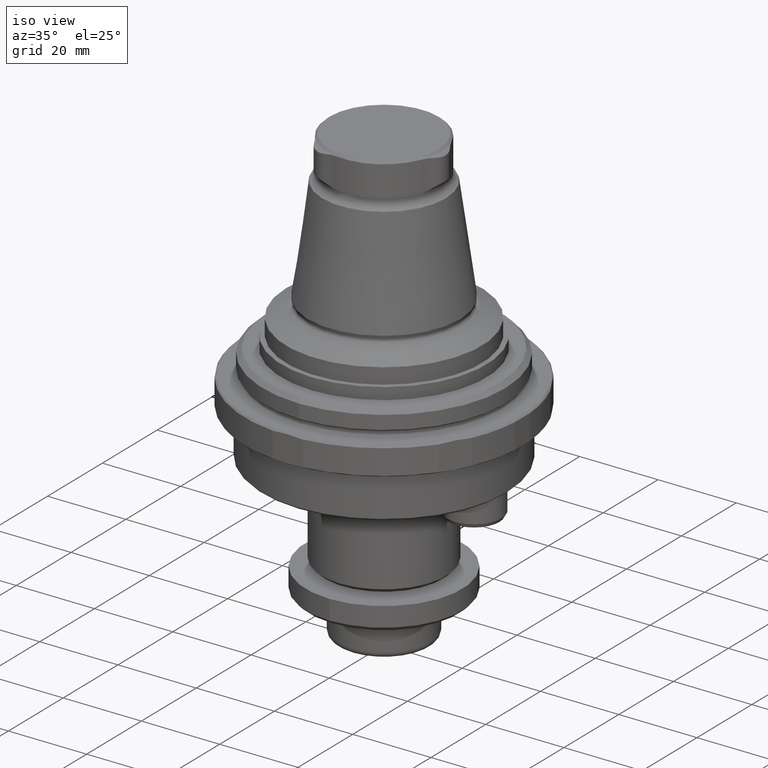
[diagram: clean part render]
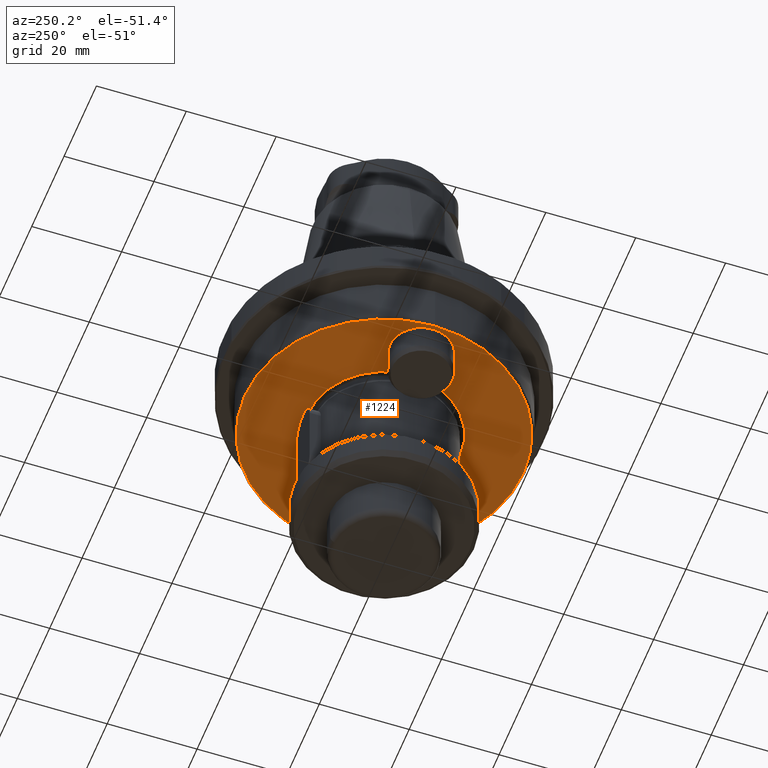
[diagram: tour spotlight — one face highlighted and labeled with its STEP entity id]
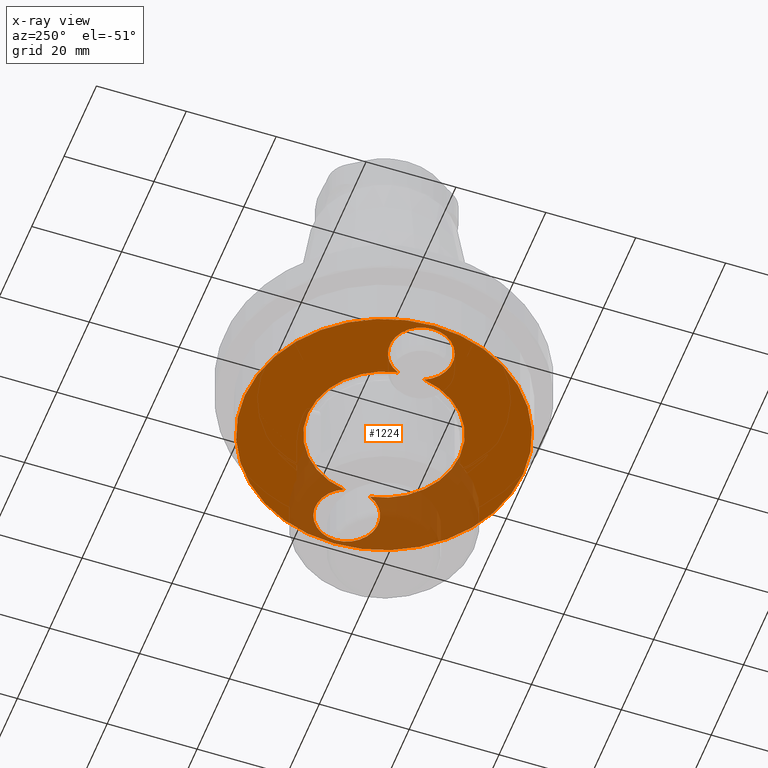
[diagram: x-ray of the same camera — body ghosted, this tour face saturated]
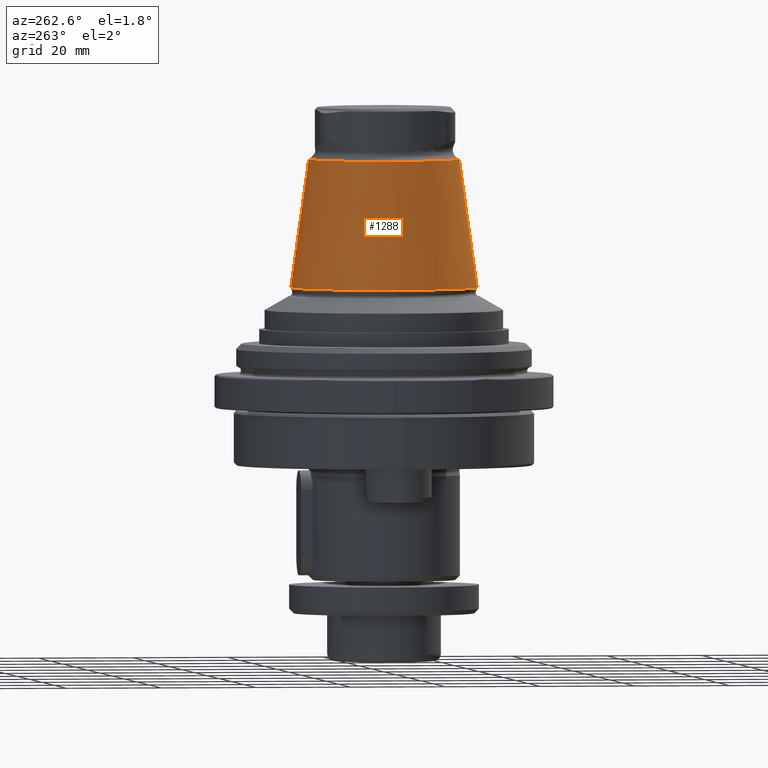
[diagram: tour spotlight — one face highlighted and labeled with its STEP entity id]
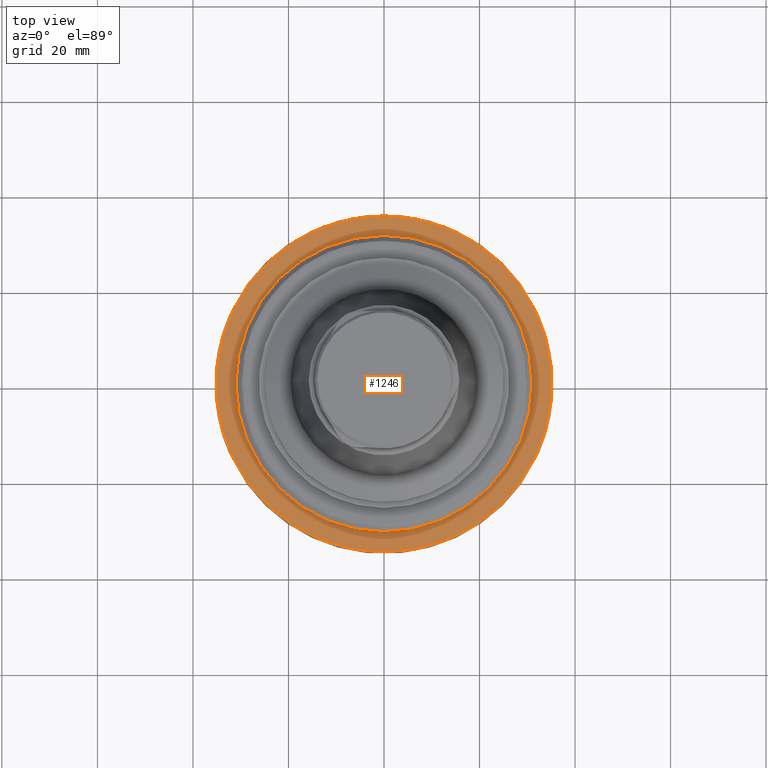
[diagram: tour spotlight — one face highlighted and labeled with its STEP entity id]
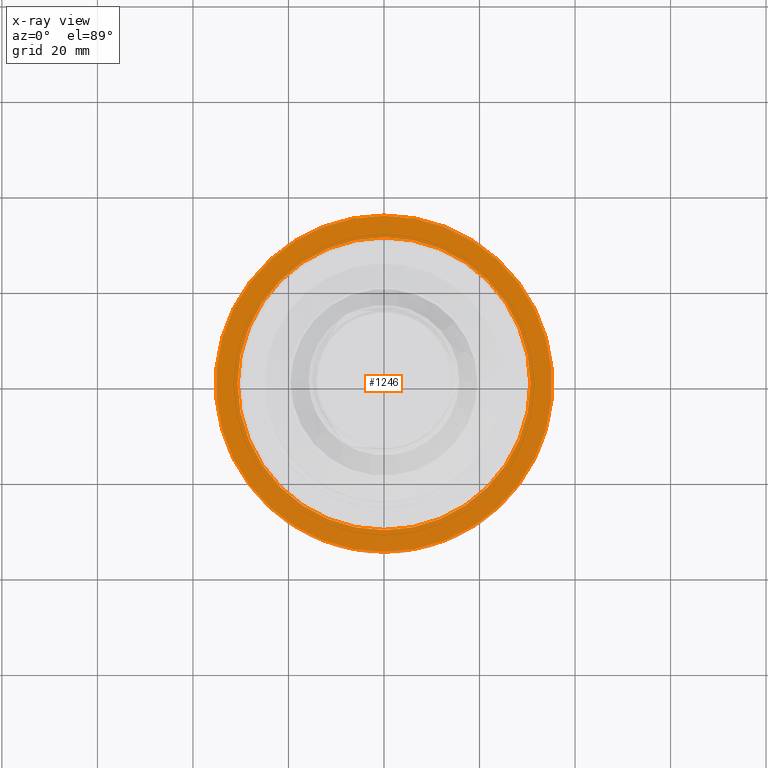
[diagram: x-ray of the same camera — body ghosted, this tour face saturated]
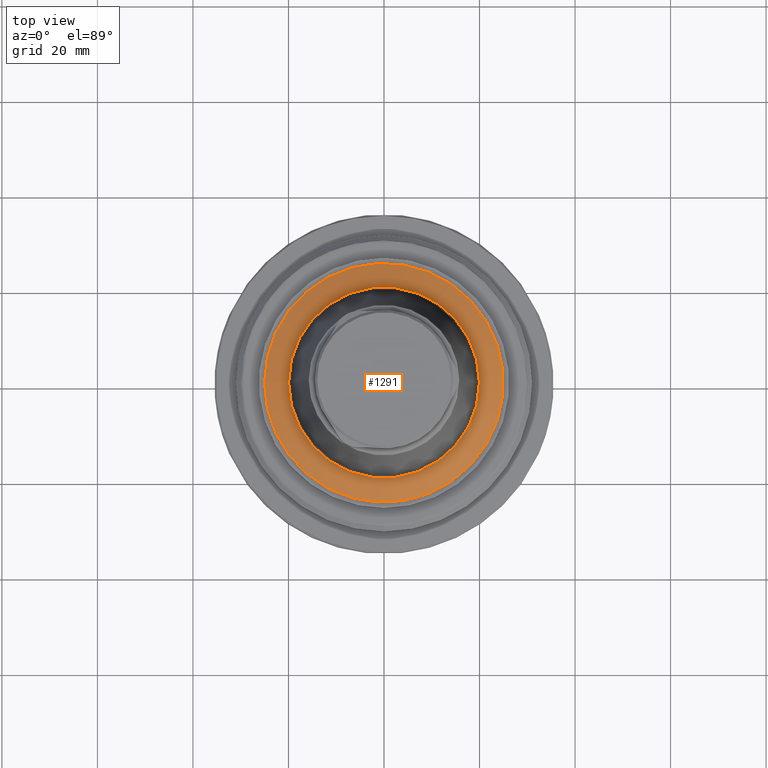
[diagram: tour spotlight — one face highlighted and labeled with its STEP entity id]
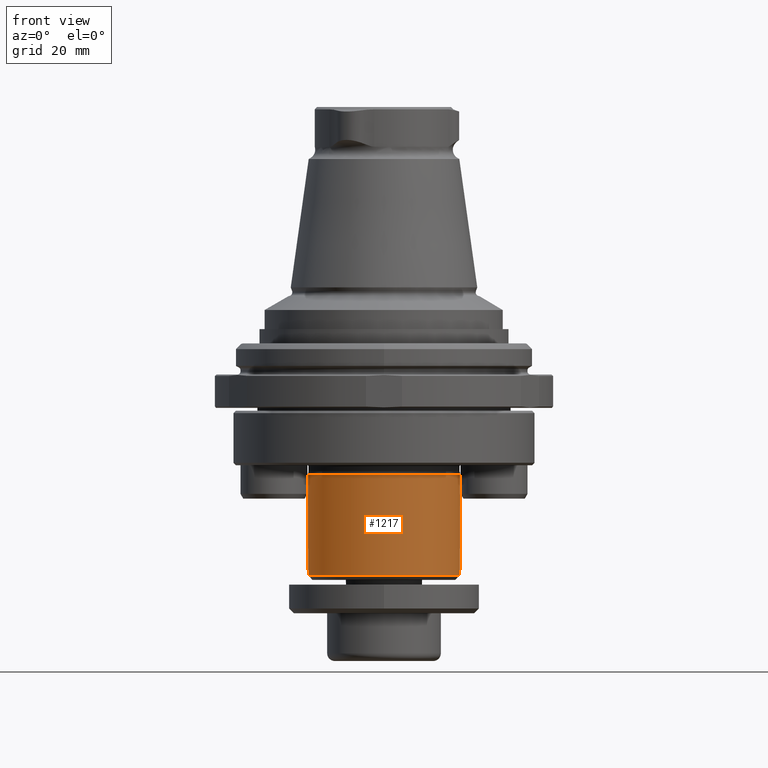
[diagram: tour spotlight — one face highlighted and labeled with its STEP entity id]
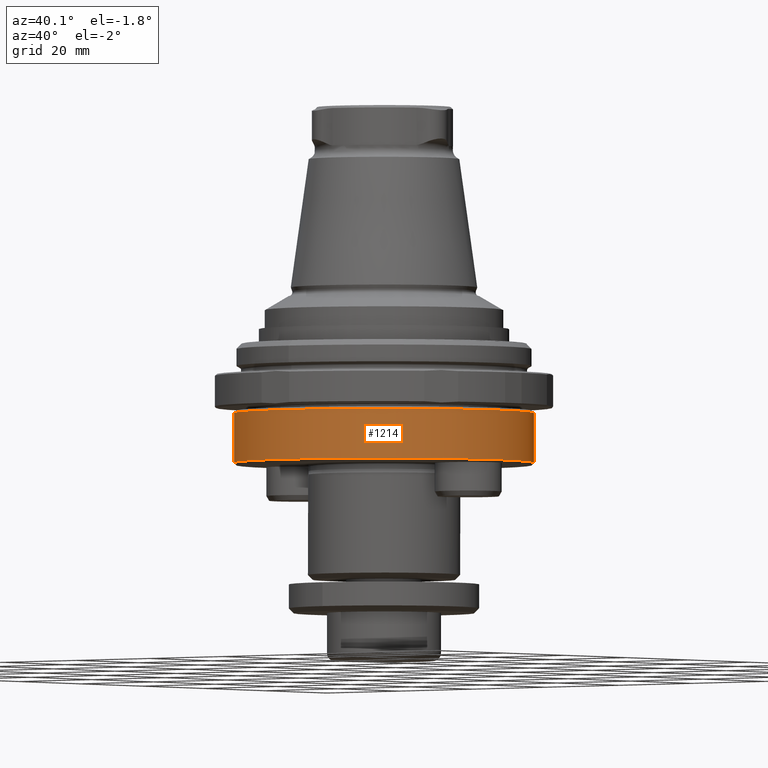
[diagram: tour spotlight — one face highlighted and labeled with its STEP entity id]
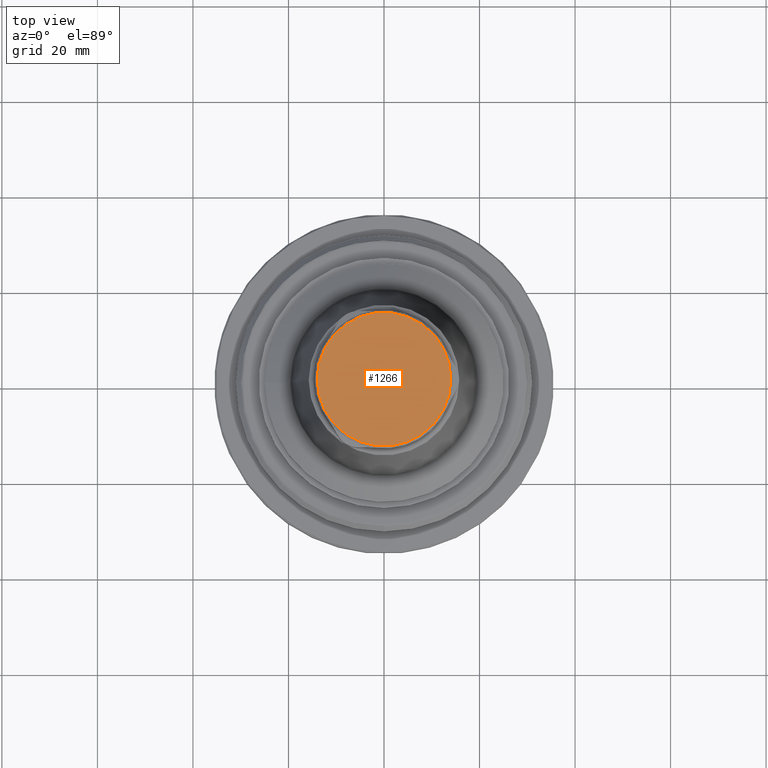
[diagram: tour spotlight — one face highlighted and labeled with its STEP entity id]
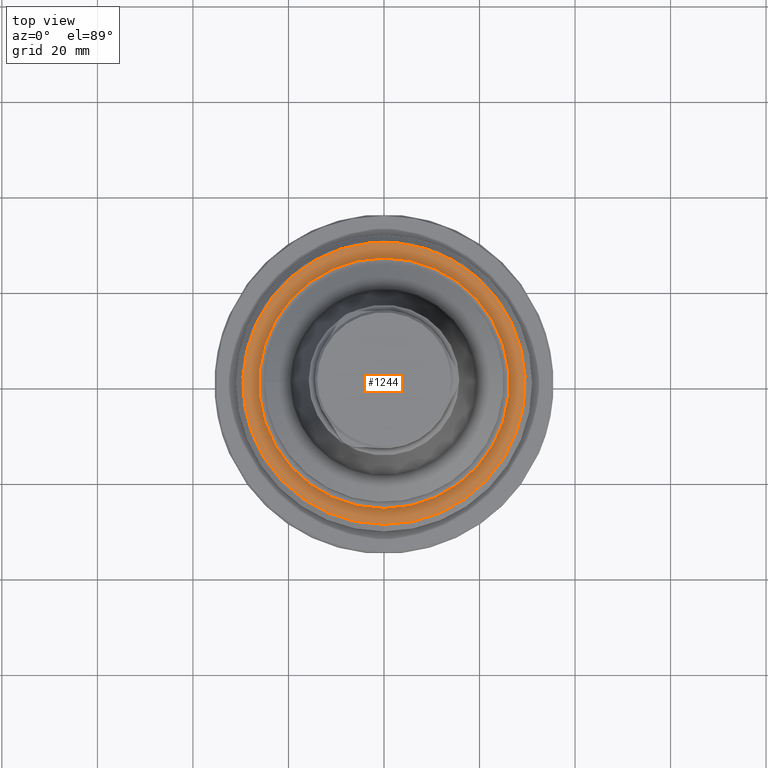
[diagram: tour spotlight — one face highlighted and labeled with its STEP entity id]
A machine part: a face-by-face anatomy tour. The part has 92 B-rep faces; the first image is the clean iso view, then the 8 largest visible faces are spotlighted one at a time (largest first), each with its STEP entity span.

Face 1 — auxiliary view, entity #1224. An x-ray twin of the same camera follows (body ghosted, this face saturated) — the face is partly hidden behind the body. In plain terms, the highlighted planar face has unit normal (0, 0, -1).
Definition (entity closure, byte-faithful):
#150=PLANE('',#1344);
#232=ORIENTED_EDGE('',*,*,#559,.T.);
#233=ORIENTED_EDGE('',*,*,#560,.F.);
#234=ORIENTED_EDGE('',*,*,#557,.F.);
#235=ORIENTED_EDGE('',*,*,#561,.F.);
#236=ORIENTED_EDGE('',*,*,#555,.F.);
#555=EDGE_CURVE('',#719,#720,#834,.T.);
#557=EDGE_CURVE('',#721,#722,#836,.T.);
#559=EDGE_CURVE('',#723,#723,#838,.T.);
#560=EDGE_CURVE('',#722,#719,#839,.T.);
#561=EDGE_CURVE('',#720,#721,#840,.T.);
#719=VERTEX_POINT('',#1960);
#720=VERTEX_POINT('',#1961);
#721=VERTEX_POINT('',#1963);
#722=VERTEX_POINT('',#1965);
#723=VERTEX_POINT('',#1969);
#834=CIRCLE('',#1338,16.9);
#836=CIRCLE('',#1340,16.9);
#838=CIRCLE('',#1343,31.);
#839=CIRCLE('',#1345,7.);
#840=CIRCLE('',#1346,7.);
#924=EDGE_LOOP('',(#232));
#925=EDGE_LOOP('',(#233,#234,#235,#236));
#1060=FACE_BOUND('',#924,.T.);
#1061=FACE_BOUND('',#925,.T.);
#1224=ADVANCED_FACE('',(#1060,#1061),#150,.T.);
#1338=AXIS2_PLACEMENT_3D('',#1959,#1536,#1537);
#1340=AXIS2_PLACEMENT_3D('',#1964,#1540,#1541);
#1343=AXIS2_PLACEMENT_3D('',#1968,#1546,#1547);
#1344=AXIS2_PLACEMENT_3D('',#1970,#1548,#1549);
#1345=AXIS2_PLACEMENT_3D('',#1971,#1550,#1551);
#1346=AXIS2_PLACEMENT_3D('',#1972,#1552,#1553);
#1536=DIRECTION('',(0.,0.,-1.));
#1537=DIRECTION('',(-1.,0.,0.));
#1540=DIRECTION('',(0.,0.,-1.));
#1541=DIRECTION('',(-1.,0.,0.));
#1546=DIRECTION('',(0.,0.,-1.));
#1547=DIRECTION('',(-1.,0.,0.));
#1548=DIRECTION('',(0.,0.,-1.));
#1549=DIRECTION('',(-1.,0.,0.));
#1550=DIRECTION('',(0.,0.,-1.));
#1551=DIRECTION('',(1.,9.86076131526265E-32,0.));
#1552=DIRECTION('',(0.,0.,-1.));
#1553=DIRECTION('',(-1.,0.,0.));
#1959=CARTESIAN_POINT('',(0.,0.,-20.));
#1960=CARTESIAN_POINT('',(-16.6575379609544,2.85244265137118,-20.));
#1961=CARTESIAN_POINT('',(16.6575379609544,2.85244265137123,-20.));
#1963=CARTESIAN_POINT('',(16.6575379609544,-2.85244265137123,-20.));
#1964=CARTESIAN_POINT('',(0.,0.,-20.));
#1965=CARTESIAN_POINT('',(-16.6575379609544,-2.85244265137118,-20.));
#1968=CARTESIAN_POINT('',(0.,0.,-20.));
#1969=CARTESIAN_POINT('',(-31.,0.,-20.));
#1970=CARTESIAN_POINT('',(-16.9,0.,-20.));
#1971=CARTESIAN_POINT('',(-23.05,0.,-20.));
#1972=CARTESIAN_POINT('',(23.05,0.,-20.));

Face 2 — auxiliary view, entity #1288. In plain terms, the highlighted conical surface has half-angle 7.95 deg.
Definition (entity closure, byte-faithful):
#193=CONICAL_SURFACE('',#1464,19.5234803751964,0.138753675533549);
#481=ORIENTED_EDGE('',*,*,#683,.T.);
#482=ORIENTED_EDGE('',*,*,#684,.F.);
#683=EDGE_CURVE('',#811,#811,#894,.T.);
#684=EDGE_CURVE('',#812,#812,#895,.T.);
#811=VERTEX_POINT('',#2380);
#812=VERTEX_POINT('',#2383);
#894=CIRCLE('',#1463,15.7697129677509);
#895=CIRCLE('',#1465,19.5234803751964);
#1016=EDGE_LOOP('',(#481));
#1017=EDGE_LOOP('',(#482));
#1152=FACE_BOUND('',#1016,.T.);
#1153=FACE_BOUND('',#1017,.T.);
#1288=ADVANCED_FACE('',(#1152,#1153),#193,.T.);
#1463=AXIS2_PLACEMENT_3D('',#2379,#1814,#1815);
#1464=AXIS2_PLACEMENT_3D('',#2381,#1816,#1817);
#1465=AXIS2_PLACEMENT_3D('',#2382,#1818,#1819);
#1814=DIRECTION('',(1.09102105407346E-16,0.,-1.));
#1815=DIRECTION('',(-1.,0.,-1.09102105407346E-16));
#1816=DIRECTION('',(1.09102105407346E-16,0.,-1.));
#1817=DIRECTION('',(-1.,0.,-1.09102105407346E-16));
#1818=DIRECTION('',(1.09102105407346E-16,0.,-1.));
#1819=DIRECTION('',(-1.,0.,-1.09102105407346E-16));
#2379=CARTESIAN_POINT('',(1.18821895240001E-15,0.,44.108));
#2380=CARTESIAN_POINT('',(-15.7697129677509,0.,44.108));
#2381=CARTESIAN_POINT('',(4.12084244364528E-15,0.,17.2283767306235));
#2382=CARTESIAN_POINT('',(4.12084244364528E-15,0.,17.2283767306235));
#2383=CARTESIAN_POINT('',(-19.5234803751964,0.,17.2283767306235));

Face 3 — top view, entity #1246. An x-ray twin of the same camera follows (body ghosted, this face saturated) — the face is partly hidden behind the body. In plain terms, the highlighted planar face has unit normal (-0, 0, -1).
Definition (entity closure, byte-faithful):
#157=PLANE('',#1389);
#278=ORIENTED_EDGE('',*,*,#582,.T.);
#279=ORIENTED_EDGE('',*,*,#583,.F.);
#582=EDGE_CURVE('',#744,#744,#861,.T.);
#583=EDGE_CURVE('',#745,#745,#862,.T.);
#744=VERTEX_POINT('',#2035);
#745=VERTEX_POINT('',#2038);
#861=CIRCLE('',#1388,30.65);
#862=CIRCLE('',#1390,35.2);
#967=EDGE_LOOP('',(#278));
#968=EDGE_LOOP('',(#279));
#1103=FACE_BOUND('',#967,.T.);
#1104=FACE_BOUND('',#968,.T.);
#1246=ADVANCED_FACE('',(#1103,#1104),#157,.F.);
#1388=AXIS2_PLACEMENT_3D('',#2034,#1636,#1637);
#1389=AXIS2_PLACEMENT_3D('',#2036,#1638,#1639);
#1390=AXIS2_PLACEMENT_3D('',#2037,#1640,#1641);
#1636=DIRECTION('',(-1.04225259501902E-17,2.37516272644386E-69,-1.));
#1637=DIRECTION('',(0.,-1.,0.));
#1638=DIRECTION('',(-1.04225259501902E-17,2.37516272644386E-69,-1.));
#1639=DIRECTION('',(0.,-1.,0.));
#1640=DIRECTION('',(-1.04225259501902E-17,2.37516272644386E-69,-1.));
#1641=DIRECTION('',(0.,-1.,0.));
#2034=CARTESIAN_POINT('',(5.3326866192906E-15,9.27301537671855E-66,-1.00000000000002));
#2035=CARTESIAN_POINT('',(5.3326866192906E-15,-30.65,-1.00000000000002));
#2036=CARTESIAN_POINT('',(5.3326866192906E-15,-30.65,-1.00000000000002));
#2037=CARTESIAN_POINT('',(5.3326866192906E-15,9.27301537671855E-66,-1.00000000000002));
#2038=CARTESIAN_POINT('',(5.3326866192906E-15,-35.2,-1.00000000000002));

Face 4 — top view, entity #1291. In plain terms, the highlighted conical surface has half-angle 60 deg.
Definition (entity closure, byte-faithful):
#195=CONICAL_SURFACE('',#1470,25.,1.0471975511966);
#487=ORIENTED_EDGE('',*,*,#686,.T.);
#488=ORIENTED_EDGE('',*,*,#687,.F.);
#686=EDGE_CURVE('',#814,#814,#897,.T.);
#687=EDGE_CURVE('',#815,#815,#898,.T.);
#814=VERTEX_POINT('',#2389);
#815=VERTEX_POINT('',#2392);
#897=CIRCLE('',#1469,19.9770526580503);
#898=CIRCLE('',#1471,25.);
#1022=EDGE_LOOP('',(#487));
#1023=EDGE_LOOP('',(#488));
#1158=FACE_BOUND('',#1022,.T.);
#1159=FACE_BOUND('',#1023,.T.);
#1291=ADVANCED_FACE('',(#1158,#1159),#195,.T.);
#1469=AXIS2_PLACEMENT_3D('',#2388,#1826,#1827);
#1470=AXIS2_PLACEMENT_3D('',#2390,#1828,#1829);
#1471=AXIS2_PLACEMENT_3D('',#2391,#1830,#1831);
#1826=DIRECTION('',(1.09102105407346E-16,0.,-1.));
#1827=DIRECTION('',(-1.,0.,-1.09102105407346E-16));
#1828=DIRECTION('',(1.09102105407346E-16,0.,-1.));
#1829=DIRECTION('',(-1.,0.,-1.09102105407346E-16));
#1830=DIRECTION('',(1.09102105407346E-16,0.,-1.));
#1831=DIRECTION('',(-1.,0.,-1.09102105407346E-16));
#2388=CARTESIAN_POINT('',(4.32044337413092E-15,0.,15.398889300107));
#2389=CARTESIAN_POINT('',(-19.9770526580503,0.,15.3988893001069));
#2390=CARTESIAN_POINT('',(4.63683947981222E-15,0.,12.498889300107));
#2391=CARTESIAN_POINT('',(4.63683947981222E-15,0.,12.498889300107));
#2392=CARTESIAN_POINT('',(-25.,0.,12.4988893001069));

Face 5 — front view, entity #1217. In plain terms, the highlighted cylindrical surface (bore or boss wall) has radius 16 mm, axis along (0, 0, -1).
Definition (entity closure, byte-faithful):
#28=LINE('',#1905,#64);
#29=LINE('',#1918,#65);
#64=VECTOR('',#1516,1000.);
#65=VECTOR('',#1517,1000.);
#100=B_SPLINE_CURVE_WITH_KNOTS('',3,(#1900,#1901,#1902,#1903),
 .UNSPECIFIED.,.F.,.F.,(4,4),(4.33680868994202E-19,0.00338658999664612),
 .UNSPECIFIED.);
#101=B_SPLINE_CURVE_WITH_KNOTS('',3,(#1907,#1908,#1909,#1910,#1911),
 .UNSPECIFIED.,.F.,.F.,(4,1,4),(0.,0.00313973915480601,0.00627947830961202),
 .UNSPECIFIED.);
#102=B_SPLINE_CURVE_WITH_KNOTS('',3,(#1912,#1913,#1914,#1915,#1916),
 .UNSPECIFIED.,.F.,.F.,(4,1,4),(0.00627947830961202,0.00941566514995395,
0.0125518519902959),.UNSPECIFIED.);
#103=B_SPLINE_CURVE_WITH_KNOTS('',3,(#1920,#1921,#1922,#1923),
 .UNSPECIFIED.,.F.,.F.,(4,4),(0.,0.00338539870366429),.UNSPECIFIED.);
#204=ORIENTED_EDGE('',*,*,#539,.T.);
#205=ORIENTED_EDGE('',*,*,#540,.T.);
#206=ORIENTED_EDGE('',*,*,#541,.T.);
#207=ORIENTED_EDGE('',*,*,#542,.T.);
#208=ORIENTED_EDGE('',*,*,#536,.F.);
#209=ORIENTED_EDGE('',*,*,#543,.T.);
#210=ORIENTED_EDGE('',*,*,#544,.T.);
#211=ORIENTED_EDGE('',*,*,#545,.T.);
#536=EDGE_CURVE('',#704,#704,#826,.T.);
#539=EDGE_CURVE('',#707,#708,#829,.T.);
#540=EDGE_CURVE('',#708,#709,#100,.T.);
#541=EDGE_CURVE('',#709,#710,#28,.T.);
#542=EDGE_CURVE('',#710,#704,#101,.T.);
#543=EDGE_CURVE('',#704,#711,#102,.T.);
#544=EDGE_CURVE('',#711,#712,#29,.F.);
#545=EDGE_CURVE('',#712,#707,#103,.T.);
#704=VERTEX_POINT('',#1890);
#707=VERTEX_POINT('',#1898);
#708=VERTEX_POINT('',#1899);
#709=VERTEX_POINT('',#1904);
#710=VERTEX_POINT('',#1906);
#711=VERTEX_POINT('',#1917);
#712=VERTEX_POINT('',#1919);
#826=CIRCLE('',#1323,16.);
#829=CIRCLE('',#1328,16.);
#913=EDGE_LOOP('',(#204,#205,#206,#207,#208,#209,#210,#211));
#1049=FACE_BOUND('',#913,.T.);
#1180=CYLINDRICAL_SURFACE('',#1327,16.);
#1217=ADVANCED_FACE('',(#1049),#1180,.T.);
#1323=AXIS2_PLACEMENT_3D('',#1889,#1504,#1505);
#1327=AXIS2_PLACEMENT_3D('',#1896,#1512,#1513);
#1328=AXIS2_PLACEMENT_3D('',#1897,#1514,#1515);
#1504=DIRECTION('',(0.,0.,-1.));
#1505=DIRECTION('',(-1.,0.,0.));
#1512=DIRECTION('',(0.,0.,-1.));
#1513=DIRECTION('',(-1.,0.,0.));
#1514=DIRECTION('',(0.,0.,-1.));
#1515=DIRECTION('',(-1.,0.,0.));
#1516=DIRECTION('',(0.,0.,-1.));
#1517=DIRECTION('',(0.,0.,-1.));
#1889=CARTESIAN_POINT('',(0.,0.,-43.));
#1890=CARTESIAN_POINT('',(0.,16.,-43.));
#1896=CARTESIAN_POINT('',(0.,0.,-46.001110699893));
#1897=CARTESIAN_POINT('',(0.,0.,-22.));
#1898=CARTESIAN_POINT('',(2.64575131106458,15.7797338380595,-22.));
#1899=CARTESIAN_POINT('',(-2.64575131106458,15.7797338380595,-22.));
#1900=CARTESIAN_POINT('',(-2.64575131106458,15.7797338380595,-22.));
#1901=CARTESIAN_POINT('',(-3.49769365160139,15.6368906451667,-22.7513425214756));
#1902=CARTESIAN_POINT('',(-4.00000000000001,15.4919333848297,-23.8546253917475));
#1903=CARTESIAN_POINT('',(-4.00000000000001,15.4919333848297,-25.));
#1904=CARTESIAN_POINT('',(-4.00000000000001,15.4919333848297,-25.));
#1905=CARTESIAN_POINT('',(-4.00000000000001,15.4919333848297,-46.001110699893));
#1906=CARTESIAN_POINT('',(-4.00000000000001,15.4919333848297,-39.));
#1907=CARTESIAN_POINT('',(-4.00000000000001,15.4919333848297,-39.));
#1908=CARTESIAN_POINT('',(-4.00000000000001,15.4919333848297,-40.0619934925799));
#1909=CARTESIAN_POINT('',(-3.13013034261293,15.7504966499889,-42.1282614276569));
#1910=CARTESIAN_POINT('',(-1.0486379208482,16.,-43.));
#1911=CARTESIAN_POINT('',(1.16079728775032E-15,16.,-43.));
#1912=CARTESIAN_POINT('',(-6.81922889001406E-16,16.,-43.));
#1913=CARTESIAN_POINT('',(1.04745148736754,16.,-43.));
#1914=CARTESIAN_POINT('',(3.13325132833637,15.750042743808,-42.1263216195312));
#1915=CARTESIAN_POINT('',(4.00000000000001,15.4919333848297,-40.0608196095333));
#1916=CARTESIAN_POINT('',(4.00000000000001,15.4919333848297,-39.));
#1917=CARTESIAN_POINT('',(4.00000000000001,15.4919333848297,-39.));
#1918=CARTESIAN_POINT('',(4.00000000000001,15.4919333848297,-46.001110699893));
#1919=CARTESIAN_POINT('',(4.00000000000001,15.4919333848297,-25.));
#1920=CARTESIAN_POINT('',(4.00000000000001,15.4919333848297,-25.));
#1921=CARTESIAN_POINT('',(4.00000000000001,15.4919333848297,-23.854913986222));
#1922=CARTESIAN_POINT('',(3.49747026201746,15.6369281003792,-22.7511455103807));
#1923=CARTESIAN_POINT('',(2.64575131106459,15.7797338380595,-22.));

Face 6 — auxiliary view, entity #1214. In plain terms, the highlighted cylindrical surface (bore or boss wall) has radius 31.5 mm, axis along (0, 0, -1).
Definition (entity closure, byte-faithful):
#198=ORIENTED_EDGE('',*,*,#534,.T.);
#199=ORIENTED_EDGE('',*,*,#535,.F.);
#534=EDGE_CURVE('',#702,#702,#824,.F.);
#535=EDGE_CURVE('',#703,#703,#825,.T.);
#702=VERTEX_POINT('',#1885);
#703=VERTEX_POINT('',#1887);
#824=CIRCLE('',#1320,31.5);
#825=CIRCLE('',#1321,31.5);
#907=EDGE_LOOP('',(#198));
#908=EDGE_LOOP('',(#199));
#1043=FACE_BOUND('',#907,.T.);
#1044=FACE_BOUND('',#908,.T.);
#1179=CYLINDRICAL_SURFACE('',#1319,31.5);
#1214=ADVANCED_FACE('',(#1043,#1044),#1179,.T.);
#1319=AXIS2_PLACEMENT_3D('',#1883,#1496,#1497);
#1320=AXIS2_PLACEMENT_3D('',#1884,#1498,#1499);
#1321=AXIS2_PLACEMENT_3D('',#1886,#1500,#1501);
#1496=DIRECTION('',(0.,0.,-1.));
#1497=DIRECTION('',(-1.,0.,0.));
#1498=DIRECTION('',(0.,0.,1.));
#1499=DIRECTION('',(1.,0.,0.));
#1500=DIRECTION('',(0.,0.,-1.));
#1501=DIRECTION('',(-1.,0.,0.));
#1883=CARTESIAN_POINT('',(0.,0.,-46.001110699893));
#1884=CARTESIAN_POINT('',(0.,0.,-9.10000000000002));
#1885=CARTESIAN_POINT('',(31.5,0.,-9.10000000000002));
#1886=CARTESIAN_POINT('',(0.,0.,-19.5));
#1887=CARTESIAN_POINT('',(-31.5,0.,-19.5));

Face 7 — top view, entity #1266. In plain terms, the highlighted planar face has unit normal (-0, 0, 1).
Definition (entity closure, byte-faithful):
#167=PLANE('',#1427);
#380=ORIENTED_EDGE('',*,*,#633,.F.);
#633=EDGE_CURVE('',#779,#779,#880,.T.);
#779=VERTEX_POINT('',#2190);
#880=CIRCLE('',#1428,14.);
#991=EDGE_LOOP('',(#380));
#1127=FACE_BOUND('',#991,.T.);
#1266=ADVANCED_FACE('',(#1127),#167,.T.);
#1427=AXIS2_PLACEMENT_3D('',#2188,#1730,#1731);
#1428=AXIS2_PLACEMENT_3D('',#2189,#1732,#1733);
#1730=DIRECTION('',(-1.09102105407346E-16,0.,1.));
#1731=DIRECTION('',(1.,0.,1.09102105407346E-16));
#1732=DIRECTION('',(1.09102105407346E-16,0.,-1.));
#1733=DIRECTION('',(-1.,0.,-1.09102105407346E-16));
#2188=CARTESIAN_POINT('',(-14.,0.,55.));
#2189=CARTESIAN_POINT('',(-1.21179696806324E-19,0.,55.));
#2190=CARTESIAN_POINT('',(-14.,0.,55.));

Face 8 — top view, entity #1244. In plain terms, the highlighted planar face has unit normal (-0, 0, -1).
Definition (entity closure, byte-faithful):
#156=PLANE('',#1386);
#274=ORIENTED_EDGE('',*,*,#580,.F.);
#275=ORIENTED_EDGE('',*,*,#578,.F.);
#578=EDGE_CURVE('',#740,#740,#857,.T.);
#580=EDGE_CURVE('',#742,#742,#859,.T.);
#740=VERTEX_POINT('',#2023);
#742=VERTEX_POINT('',#2028);
#857=CIRCLE('',#1380,29.5524710292422);
#859=CIRCLE('',#1383,26.2);
#963=EDGE_LOOP('',(#274));
#964=EDGE_LOOP('',(#275));
#1099=FACE_BOUND('',#963,.T.);
#1100=FACE_BOUND('',#964,.T.);
#1244=ADVANCED_FACE('',(#1099,#1100),#156,.F.);
#1380=AXIS2_PLACEMENT_3D('',#2022,#1620,#1621);
#1383=AXIS2_PLACEMENT_3D('',#2027,#1626,#1627);
#1386=AXIS2_PLACEMENT_3D('',#2032,#1632,#1633);
#1620=DIRECTION('',(-1.04225259501902E-17,2.37516272644386E-69,-1.));
#1621=DIRECTION('',(0.,-1.,0.));
#1626=DIRECTION('',(-2.63866710031579E-16,-1.20124239596358E-17,1.));
#1627=DIRECTION('',(0.,1.,1.20124239596361E-17));
#1632=DIRECTION('',(-1.04225259501902E-17,2.37516272644386E-69,-1.));
#1633=DIRECTION('',(0.,-1.,0.));
#2022=CARTESIAN_POINT('',(5.40043303796684E-15,9.25757681899667E-66,5.49999999999999));
#2023=CARTESIAN_POINT('',(5.40043303796684E-15,-29.5524710292422,5.49999999999999));
#2027=CARTESIAN_POINT('',(5.68103589876618E-15,5.44457980932285E-15,5.49999999999999));
#2028=CARTESIAN_POINT('',(5.68103589876618E-15,26.2,5.49999999999999));
#2032=CARTESIAN_POINT('',(5.40043303796684E-15,9.25757681899667E-66,5.49999999999998));